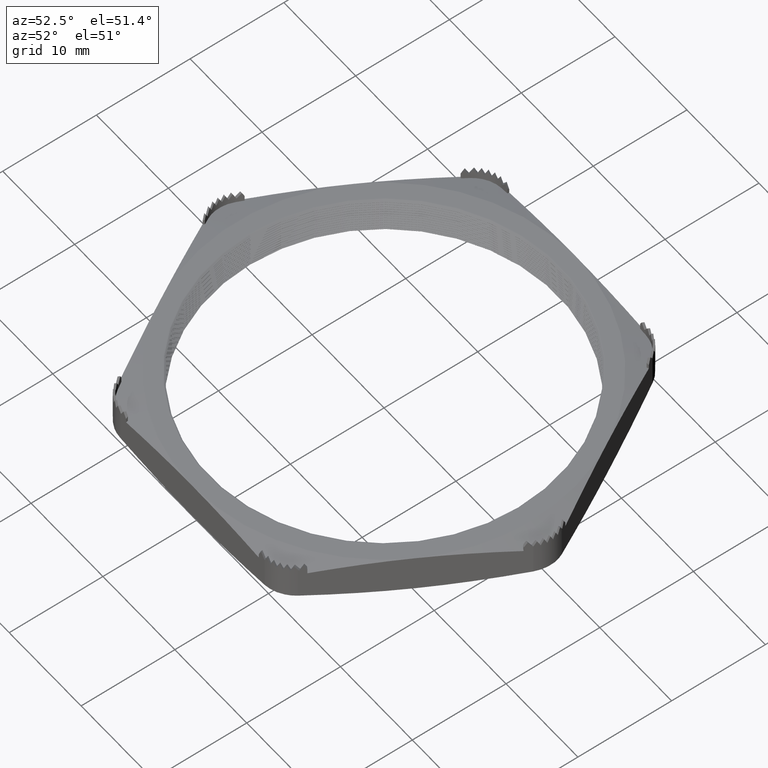
[diagram: clean part render]
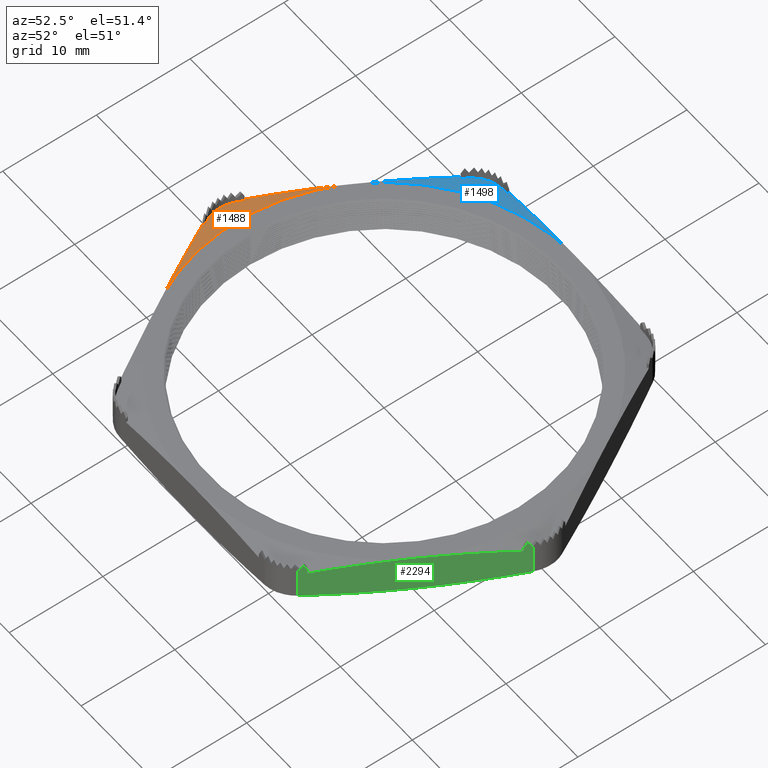
[diagram: same view with three faces highlighted in distinct colors, each labeled with its STEP entity id]
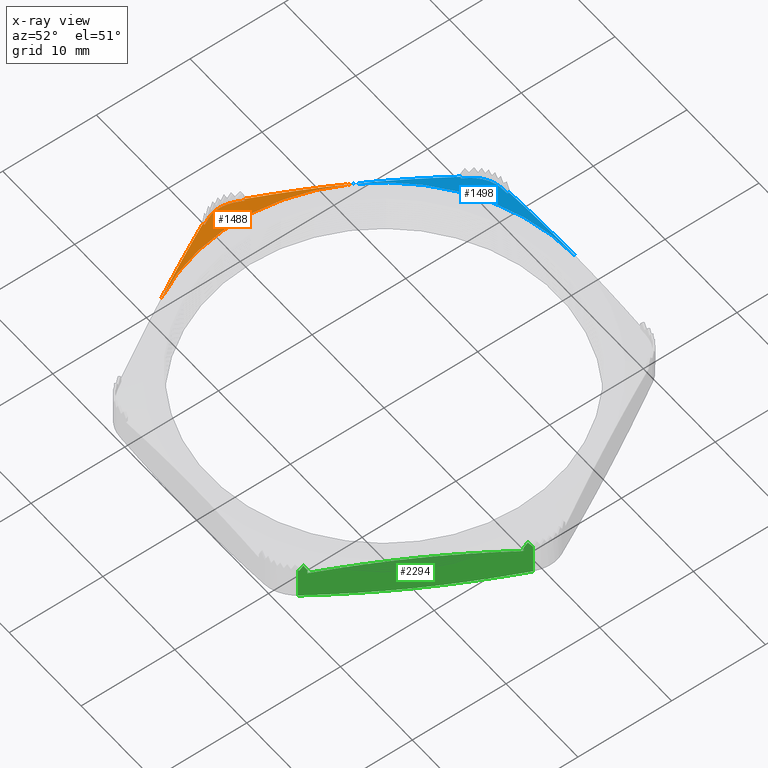
[diagram: x-ray of the same camera — body ghosted, the three highlighted faces saturated]
A machine part, auxiliary view with three faces highlighted in distinct colors.
The next image is the same camera in x-ray (body ghosted, the three faces saturated) — at least one of them is partly hidden behind the body in this view.
Their STEP definitions:

[orange] entity #1488 — the highlighted conical surface has half-angle 75 deg.
#1134 = EDGE_CURVE ( 'NONE', #2249, #2315, #4203, .T. ) ;
#1408 = ORIENTED_EDGE ( 'NONE', *, *, #1409, .T. ) ;
#1409 = EDGE_CURVE ( 'NONE', #2119, #1410, #4600, .T. ) ;
#1410 = VERTEX_POINT ( 'NONE', #4599 ) ;
#1411 = ORIENTED_EDGE ( 'NONE', *, *, #1412, .T. ) ;
#1412 = EDGE_CURVE ( 'NONE', #1410, #1413, #4647, .T. ) ;
#1413 = VERTEX_POINT ( 'NONE', #4646 ) ;
#1414 = ORIENTED_EDGE ( 'NONE', *, *, #1415, .T. ) ;
#1415 = EDGE_CURVE ( 'NONE', #1413, #1416, #4641, .T. ) ;
#1416 = VERTEX_POINT ( 'NONE', #4640 ) ;
#1417 = ORIENTED_EDGE ( 'NONE', *, *, #1418, .T. ) ;
#1418 = EDGE_CURVE ( 'NONE', #1416, #1419, #4626, .T. ) ;
#1419 = VERTEX_POINT ( 'NONE', #4625 ) ;
#1474 = ORIENTED_EDGE ( 'NONE', *, *, #1475, .T. ) ;
#1475 = EDGE_CURVE ( 'NONE', #1419, #2239, #4731, .T. ) ;
#1476 = ORIENTED_EDGE ( 'NONE', *, *, #2251, .T. ) ;
#1477 = ORIENTED_EDGE ( 'NONE', *, *, #1134, .T. ) ;
#1478 = ORIENTED_EDGE ( 'NONE', *, *, #2314, .T. ) ;
#1488 = ADVANCED_FACE ( 'NONE', ( #4765 ), #4762, .T. ) ;
#1489 = EDGE_LOOP ( 'NONE', ( #1408, #1411, #1414, #1417, #1474, #1476, #1477, #1478 ) ) ;
#2119 = VERTEX_POINT ( 'NONE', #6063 ) ;
#2239 = VERTEX_POINT ( 'NONE', #6312 ) ;
#2249 = VERTEX_POINT ( 'NONE', #6359 ) ;
#2251 = EDGE_CURVE ( 'NONE', #2239, #2249, #6352, .T. ) ;
#2314 = EDGE_CURVE ( 'NONE', #2315, #2119, #6463, .T. ) ;
#2315 = VERTEX_POINT ( 'NONE', #6462 ) ;
#4199 = DIRECTION ( 'NONE',  ( -1.000000000000000000, 0.0000000000000000000, 0.0000000000000000000 ) ) ;
#4200 = DIRECTION ( 'NONE',  ( 0.0000000000000000000, 0.0000000000000000000, -1.000000000000000000 ) ) ;
#4201 = CARTESIAN_POINT ( 'NONE',  ( 0.0000000000000000000, 0.0000000000000000000, 0.1600000000000000000 ) ) ;
#4202 = AXIS2_PLACEMENT_3D ( 'NONE', #4201, #4200, #4199 ) ;
#4203 = CIRCLE ( 'NONE', #4202, 0.8050000000000001600 ) ;
#4595 = CARTESIAN_POINT ( 'NONE',  ( -0.8719647140136449500, 0.08371281292109948600, 0.1409825971328895500 ) ) ;
#4596 = CARTESIAN_POINT ( 'NONE',  ( -0.8742742261706597500, 0.08504621038664948700, 0.1403324536377875700 ) ) ;
#4597 = CARTESIAN_POINT ( 'NONE',  ( -0.8765836264093800300, 0.08637954323614123500, 0.1396817798333260500 ) ) ;
#4598 = CARTESIAN_POINT ( 'NONE',  ( -0.8788929172439213800, 0.08771281292109976700, 0.1390305889569836700 ) ) ;
#4599 = CARTESIAN_POINT ( 'NONE',  ( -0.8719647140136449500, 0.08371281292109948600, 0.1409825971328895500 ) ) ;
#4600 = B_SPLINE_CURVE_WITH_KNOTS ( 'NONE', 3,
 ( #4598, #4597, #4596, #4595 ),
 .UNSPECIFIED., .F., .F.,
 ( 4, 4 ),
 ( 2.377267603356265900E-007, 0.0002093991866935288900 ),
 .UNSPECIFIED. ) ;
#4621 = CARTESIAN_POINT ( 'NONE',  ( -0.8719647140136445000, -0.08371281292110301100, 0.1409825971328895200 ) ) ;
#4622 = CARTESIAN_POINT ( 'NONE',  ( -0.8773004258428439600, -0.07447108893838357000, 0.1397960908119262300 ) ) ;
#4623 = CARTESIAN_POINT ( 'NONE',  ( -0.8826338010509426900, -0.06523341210212850500, 0.1385668485416790300 ) ) ;
#4624 = CARTESIAN_POINT ( 'NONE',  ( -0.8879647140136445200, -0.05600000000000180500, 0.1372969870991923300 ) ) ;
#4625 = CARTESIAN_POINT ( 'NONE',  ( -0.8719647140136445000, -0.08371281292110301100, 0.1409825971328895200 ) ) ;
#4626 = B_SPLINE_CURVE_WITH_KNOTS ( 'NONE', 3,
 ( #4624, #4623, #4622, #4621 ),
 .UNSPECIFIED., .F., .F.,
 ( 4, 4 ),
 ( 2.325706409840344000E-007, 0.0008184058491383300900 ),
 .UNSPECIFIED. ) ;
#4627 = CARTESIAN_POINT ( 'NONE',  ( -0.8879647140136445200, -0.05600000000000180500, 0.1372969870991923300 ) ) ;
#4628 = CARTESIAN_POINT ( 'NONE',  ( -0.8928726924769564400, -0.04749913193909154800, 0.1361278716672497100 ) ) ;
#4629 = CARTESIAN_POINT ( 'NONE',  ( -0.8966252038629916000, -0.03841558526766257500, 0.1352421121237987500 ) ) ;
#4630 = CARTESIAN_POINT ( 'NONE',  ( -0.9016694368837348000, -0.01960644395859573500, 0.1340537446975566500 ) ) ;
#4631 = CARTESIAN_POINT ( 'NONE',  ( -0.9029739887445900100, -0.009701254162843940900, 0.1337480857638034300 ) ) ;
#4632 = CARTESIAN_POINT ( 'NONE',  ( -0.9029677937363614900, 0.004921799717285105600, 0.1337495398194442400 ) ) ;
#4633 = CARTESIAN_POINT ( 'NONE',  ( -0.9026488927524557400, 0.009786468010697747800, 0.1338243553465434400 ) ) ;
#4634 = CARTESIAN_POINT ( 'NONE',  ( -0.9013685954937965500, 0.01949616607213217100, 0.1341251397097538200 ) ) ;
#4635 = CARTESIAN_POINT ( 'NONE',  ( -0.9003965472930397500, 0.02436580177563657200, 0.1343536180613300000 ) ) ;
#4636 = CARTESIAN_POINT ( 'NONE',  ( -0.8965885572564572500, 0.03852601334521235000, 0.1352507574706307300 ) ) ;
#4637 = CARTESIAN_POINT ( 'NONE',  ( -0.8928724545599157100, 0.04749954402349054700, 0.1361279283407836600 ) ) ;
#4638 = CARTESIAN_POINT ( 'NONE',  ( -0.8879647140136449600, 0.05599999999999736400, 0.1372969870991998000 ) ) ;
#4640 = CARTESIAN_POINT ( 'NONE',  ( -0.8879647140136445200, -0.05600000000000180500, 0.1372969870991923300 ) ) ;
#4641 = B_SPLINE_CURVE_WITH_KNOTS ( 'NONE', 3,
 ( #4638, #4637, #4636, #4635, #4634, #4633, #4632, #4631, #4630, #4629, #4628, #4627 ),
 .UNSPECIFIED., .F., .F.,
 ( 4, 2, 2, 2, 2, 4 ),
 ( 2.293178405449873700E-007, 0.0007429020004505192200, 0.001114238341755505900, 0.001485574683060492900, 0.002228247365670467000, 0.002970920048280441000 ),
 .UNSPECIFIED. ) ;
#4642 = CARTESIAN_POINT ( 'NONE',  ( -0.8879647140136449600, 0.05599999999999736400, 0.1372969870991998000 ) ) ;
#4643 = CARTESIAN_POINT ( 'NONE',  ( -0.8826338010509428000, 0.06523341210212481300, 0.1385668485416790800 ) ) ;
#4644 = CARTESIAN_POINT ( 'NONE',  ( -0.8773004258428442900, 0.07447108893837996200, 0.1397960908119262900 ) ) ;
#4645 = CARTESIAN_POINT ( 'NONE',  ( -0.8719647140136449500, 0.08371281292109948600, 0.1409825971328895500 ) ) ;
#4646 = CARTESIAN_POINT ( 'NONE',  ( -0.8879647140136449600, 0.05599999999999736400, 0.1372969870991998000 ) ) ;
#4647 = B_SPLINE_CURVE_WITH_KNOTS ( 'NONE', 3,
 ( #4645, #4644, #4643, #4642 ),
 .UNSPECIFIED., .F., .F.,
 ( 4, 4 ),
 ( 2.323613523121268800E-007, 0.0008184056398496577600 ),
 .UNSPECIFIED. ) ;
#4729 = CARTESIAN_POINT ( 'NONE',  ( -0.8719647140136445000, -0.08371281292110301100, 0.1409825971328895200 ) ) ;
#4731 = B_SPLINE_CURVE_WITH_KNOTS ( 'NONE', 3,
 ( #4729, #4779, #4778, #4777 ),
 .UNSPECIFIED., .F., .F.,
 ( 4, 4 ),
 ( 2.377039528376292500E-007, 0.0002093991638859902100 ),
 .UNSPECIFIED. ) ;
#4754 = DIRECTION ( 'NONE',  ( 1.000000000000000000, 0.0000000000000000000, 0.0000000000000000000 ) ) ;
#4755 = DIRECTION ( 'NONE',  ( 0.0000000000000000000, 0.0000000000000000000, -1.000000000000000000 ) ) ;
#4756 = CARTESIAN_POINT ( 'NONE',  ( 0.0000000000000000000, 0.0000000000000000000, 0.1600000000000000000 ) ) ;
#4757 = AXIS2_PLACEMENT_3D ( 'NONE', #4756, #4755, #4754 ) ;
#4762 = CONICAL_SURFACE ( 'NONE', #4757, 0.8050000000000001600, 1.308996938995750100 ) ;
#4765 = FACE_OUTER_BOUND ( 'NONE', #1489, .T. ) ;
#4777 = CARTESIAN_POINT ( 'NONE',  ( -0.8788929172439191600, -0.08771281292110333400, 0.1390305889569842000 ) ) ;
#4778 = CARTESIAN_POINT ( 'NONE',  ( -0.8765836264093787000, -0.08637954323614427400, 0.1396817798333262800 ) ) ;
#4779 = CARTESIAN_POINT ( 'NONE',  ( -0.8742742261706588600, -0.08504621038665279000, 0.1403324536377877100 ) ) ;
#6063 = CARTESIAN_POINT ( 'NONE',  ( -0.8788929172439213800, 0.08771281292109976700, 0.1390305889569836700 ) ) ;
#6312 = CARTESIAN_POINT ( 'NONE',  ( -0.8788929172439191600, -0.08771281292110333400, 0.1390305889569842000 ) ) ;
#6344 = CARTESIAN_POINT ( 'NONE',  ( -0.6971504500464734700, -0.4024999999999999100, 0.1600000000000000000 ) ) ;
#6345 = CARTESIAN_POINT ( 'NONE',  ( -0.7274408612460476800, -0.3500354688201838800, 0.1600000000000000300 ) ) ;
#6346 = CARTESIAN_POINT ( 'NONE',  ( -0.7577312724456217700, -0.2975709376403677400, 0.1581459543130509500 ) ) ;
#6347 = CARTESIAN_POINT ( 'NONE',  ( -0.8183120948447705200, -0.1926418752807356200, 0.1509963363517693200 ) ) ;
#6348 = CARTESIAN_POINT ( 'NONE',  ( -0.8486025060443448400, -0.1401773441009193900, 0.1457107357556509400 ) ) ;
#6349 = CARTESIAN_POINT ( 'NONE',  ( -0.8788929172439191600, -0.08771281292110333400, 0.1390305889569842000 ) ) ;
#6352 = B_SPLINE_CURVE_WITH_KNOTS ( 'NONE', 3,
 ( #6349, #6348, #6347, #6346, #6345, #6344 ),
 .UNSPECIFIED., .F., .F.,
 ( 4, 2, 4 ),
 ( 0.0008130309401077197100, 0.005429289606922847400, 0.01004554827373797500 ),
 .UNSPECIFIED. ) ;
#6359 = CARTESIAN_POINT ( 'NONE',  ( -0.6971504500464734700, -0.4024999999999999100, 0.1600000000000000000 ) ) ;
#6456 = CARTESIAN_POINT ( 'NONE',  ( -0.8788929172439213800, 0.08771281292109976700, 0.1390305889569836700 ) ) ;
#6457 = CARTESIAN_POINT ( 'NONE',  ( -0.8486025060443466200, 0.1401773441009164200, 0.1457107357556506100 ) ) ;
#6458 = CARTESIAN_POINT ( 'NONE',  ( -0.8183120948447717400, 0.1926418752807331800, 0.1509963363517690700 ) ) ;
#6459 = CARTESIAN_POINT ( 'NONE',  ( -0.7577312724456227700, 0.2975709376403666800, 0.1581459543130508700 ) ) ;
#6460 = CARTESIAN_POINT ( 'NONE',  ( -0.7274408612460479000, 0.3500354688201832700, 0.1600000000000000300 ) ) ;
#6461 = CARTESIAN_POINT ( 'NONE',  ( -0.6971504500464731400, 0.4025000000000001900, 0.1600000000000000000 ) ) ;
#6462 = CARTESIAN_POINT ( 'NONE',  ( -0.6971504500464731400, 0.4025000000000001900, 0.1600000000000000000 ) ) ;
#6463 = B_SPLINE_CURVE_WITH_KNOTS ( 'NONE', 3,
 ( #6461, #6460, #6459, #6458, #6457, #6456 ),
 .UNSPECIFIED., .F., .F.,
 ( 4, 2, 4 ),
 ( 0.01004554827373797600, 0.01466180694055316300, 0.01927806560736834700 ),
 .UNSPECIFIED. ) ;

[blue] entity #1498 — the highlighted conical surface has half-angle 75 deg.
#835 = VERTEX_POINT ( 'NONE', #3558 ) ;
#837 = EDGE_CURVE ( 'NONE', #838, #835, #3557, .T. ) ;
#838 = VERTEX_POINT ( 'NONE', #3556 ) ;
#1074 = EDGE_CURVE ( 'NONE', #2315, #838, #4073, .T. ) ;
#1490 = ORIENTED_EDGE ( 'NONE', *, *, #837, .T. ) ;
#1498 = ADVANCED_FACE ( 'NONE', ( #4794 ), #4796, .T. ) ;
#1499 = EDGE_LOOP ( 'NONE', ( #1500, #1503, #1565, #1568, #1571, #1573, #1574, #1490 ) ) ;
#1500 = ORIENTED_EDGE ( 'NONE', *, *, #1501, .T. ) ;
#1501 = EDGE_CURVE ( 'NONE', #835, #1502, #4782, .T. ) ;
#1502 = VERTEX_POINT ( 'NONE', #4781 ) ;
#1503 = ORIENTED_EDGE ( 'NONE', *, *, #1563, .T. ) ;
#1563 = EDGE_CURVE ( 'NONE', #1502, #1564, #4924, .T. ) ;
#1564 = VERTEX_POINT ( 'NONE', #4923 ) ;
#1565 = ORIENTED_EDGE ( 'NONE', *, *, #1566, .T. ) ;
#1566 = EDGE_CURVE ( 'NONE', #1564, #1567, #4918, .T. ) ;
#1567 = VERTEX_POINT ( 'NONE', #4917 ) ;
#1568 = ORIENTED_EDGE ( 'NONE', *, *, #1569, .T. ) ;
#1569 = EDGE_CURVE ( 'NONE', #1567, #1570, #4916, .T. ) ;
#1570 = VERTEX_POINT ( 'NONE', #4951 ) ;
#1571 = ORIENTED_EDGE ( 'NONE', *, *, #1572, .T. ) ;
#1572 = EDGE_CURVE ( 'NONE', #1570, #2278, #4946, .T. ) ;
#1573 = ORIENTED_EDGE ( 'NONE', *, *, #2265, .T. ) ;
#1574 = ORIENTED_EDGE ( 'NONE', *, *, #1074, .T. ) ;
#2265 = EDGE_CURVE ( 'NONE', #2278, #2315, #6378, .T. ) ;
#2278 = VERTEX_POINT ( 'NONE', #6412 ) ;
#2315 = VERTEX_POINT ( 'NONE', #6462 ) ;
#3548 = CARTESIAN_POINT ( 'NONE',  ( -0.3634849343948943800, 0.8050000000000001600, 0.1390305889569839200 ) ) ;
#3549 = CARTESIAN_POINT ( 'NONE',  ( -0.3029621484441051300, 0.8050000000000001600, 0.1457043361727570200 ) ) ;
#3550 = CARTESIAN_POINT ( 'NONE',  ( -0.2421923260608029000, 0.8050000000000002700, 0.1510068934148640900 ) ) ;
#3551 = CARTESIAN_POINT ( 'NONE',  ( -0.1209900321876240900, 0.8050000000000002700, 0.1581532448706951500 ) ) ;
#3552 = CARTESIAN_POINT ( 'NONE',  ( -0.06045803258295566500, 0.8050000000000001600, 0.1599999999999999200 ) ) ;
#3553 = CARTESIAN_POINT ( 'NONE',  ( 0.0000000000000000000, 0.8050000000000001600, 0.1600000000000000000 ) ) ;
#3556 = CARTESIAN_POINT ( 'NONE',  ( 0.0000000000000000000, 0.8050000000000001600, 0.1600000000000000000 ) ) ;
#3557 = B_SPLINE_CURVE_WITH_KNOTS ( 'NONE', 3,
 ( #3553, #3552, #3551, #3550, #3549, #3548 ),
 .UNSPECIFIED., .F., .F.,
 ( 4, 2, 4 ),
 ( 0.05306405187796105200, 0.05768915721245433000, 0.06231426254694760700 ),
 .UNSPECIFIED. ) ;
#3558 = CARTESIAN_POINT ( 'NONE',  ( -0.3634849343948943800, 0.8050000000000001600, 0.1390305889569839200 ) ) ;
#4069 = DIRECTION ( 'NONE',  ( -1.000000000000000000, 0.0000000000000000000, 0.0000000000000000000 ) ) ;
#4070 = DIRECTION ( 'NONE',  ( 0.0000000000000000000, 0.0000000000000000000, -1.000000000000000000 ) ) ;
#4071 = CARTESIAN_POINT ( 'NONE',  ( 0.0000000000000000000, 0.0000000000000000000, 0.1600000000000000000 ) ) ;
#4072 = AXIS2_PLACEMENT_3D ( 'NONE', #4071, #4070, #4069 ) ;
#4073 = CIRCLE ( 'NONE', #4072, 0.8050000000000001600 ) ;
#4780 = CARTESIAN_POINT ( 'NONE',  ( -0.3634849343948943800, 0.8050000000000001600, 0.1390305889569839200 ) ) ;
#4781 = CARTESIAN_POINT ( 'NONE',  ( -0.3634849343948941500, 0.7970000000000000400, 0.1409825971328895200 ) ) ;
#4782 = B_SPLINE_CURVE_WITH_KNOTS ( 'NONE', 3,
 ( #4780, #4827, #4826, #4825, #4824, #4823, #4822 ),
 .UNSPECIFIED., .F., .F.,
 ( 4, 3, 4 ),
 ( 0.002219040344495822700, 0.002332800426249965800, 0.002428201429202445300 ),
 .UNSPECIFIED. ) ;
#4783 = DIRECTION ( 'NONE',  ( 1.000000000000000000, 0.0000000000000000000, 0.0000000000000000000 ) ) ;
#4784 = DIRECTION ( 'NONE',  ( 0.0000000000000000000, 0.0000000000000000000, -1.000000000000000000 ) ) ;
#4785 = CARTESIAN_POINT ( 'NONE',  ( 0.0000000000000000000, 0.0000000000000000000, 0.1600000000000000000 ) ) ;
#4786 = AXIS2_PLACEMENT_3D ( 'NONE', #4785, #4784, #4783 ) ;
#4794 = FACE_OUTER_BOUND ( 'NONE', #1499, .T. ) ;
#4796 = CONICAL_SURFACE ( 'NONE', #4786, 0.8050000000000001600, 1.308996938995750100 ) ;
#4822 = CARTESIAN_POINT ( 'NONE',  ( -0.3634849343948941500, 0.7970000000000000400, 0.1409825971328895200 ) ) ;
#4823 = CARTESIAN_POINT ( 'NONE',  ( -0.3634849343948934900, 0.7982163587306845300, 0.1406860585024747900 ) ) ;
#4824 = CARTESIAN_POINT ( 'NONE',  ( -0.3634849343948934900, 0.7994326905691387900, 0.1403894095427568300 ) ) ;
#4825 = CARTESIAN_POINT ( 'NONE',  ( -0.3634849343948934900, 0.8006489957929516800, 0.1400926515208490700 ) ) ;
#4826 = CARTESIAN_POINT ( 'NONE',  ( -0.3634849343948934900, 0.8020993682023355200, 0.1397387850416037800 ) ) ;
#4827 = CARTESIAN_POINT ( 'NONE',  ( -0.3634849343948934900, 0.8035497027833309300, 0.1393847634822633100 ) ) ;
#4911 = CARTESIAN_POINT ( 'NONE',  ( -0.4338001270076254900, 0.7903561835845177600, 0.1341251394670321100 ) ) ;
#4912 = CARTESIAN_POINT ( 'NONE',  ( -0.4290968755473641400, 0.7919491824369593300, 0.1343536178318957300 ) ) ;
#4913 = CARTESIAN_POINT ( 'NONE',  ( -0.4149297935073169000, 0.7957314693390370500, 0.1352507559292461200 ) ) ;
#4914 = CARTESIAN_POINT ( 'NONE',  ( -0.4053004337344769900, 0.7970000000000000400, 0.1361279261674960800 ) ) ;
#4915 = CARTESIAN_POINT ( 'NONE',  ( -0.3954849343948943500, 0.7970000000000001500, 0.1372969870991998000 ) ) ;
#4916 = B_SPLINE_CURVE_WITH_KNOTS ( 'NONE', 3,
 ( #4950, #4949, #4948, #4947 ),
 .UNSPECIFIED., .F., .F.,
 ( 4, 4 ),
 ( 2.325706409842209900E-007, 0.0008184058491383302000 ),
 .UNSPECIFIED. ) ;
#4917 = CARTESIAN_POINT ( 'NONE',  ( -0.4924797796187506100, 0.7410000000000002100, 0.1372969870991923300 ) ) ;
#4918 = B_SPLINE_CURVE_WITH_KNOTS ( 'NONE', 3,
 ( #4915, #4914, #4913, #4912, #4911, #4958, #4957, #4956, #4955, #4954, #4953, #4952 ),
 .UNSPECIFIED., .F., .F.,
 ( 4, 2, 2, 2, 2, 4 ),
 ( 1.985902076092223800E-007, 0.0007428712618214092600, 0.001114207597628310400, 0.001485543933435211700, 0.002228216605049019400, 0.002970889276662826800 ),
 .UNSPECIFIED. ) ;
#4919 = CARTESIAN_POINT ( 'NONE',  ( -0.3954849343948943500, 0.7970000000000001500, 0.1372969870991998000 ) ) ;
#4920 = CARTESIAN_POINT ( 'NONE',  ( -0.3848230167087705000, 0.7970000000000000400, 0.1385668594707076300 ) ) ;
#4921 = CARTESIAN_POINT ( 'NONE',  ( -0.3741559887852666200, 0.7970000000000000400, 0.1397961318691330100 ) ) ;
#4922 = CARTESIAN_POINT ( 'NONE',  ( -0.3634849343948941500, 0.7970000000000000400, 0.1409825971328895200 ) ) ;
#4923 = CARTESIAN_POINT ( 'NONE',  ( -0.3954849343948943500, 0.7970000000000001500, 0.1372969870991998000 ) ) ;
#4924 = B_SPLINE_CURVE_WITH_KNOTS ( 'NONE', 3,
 ( #4922, #4921, #4920, #4919 ),
 .UNSPECIFIED., .F., .F.,
 ( 4, 4 ),
 ( 0.002287766247632967600, 0.003105880664764662700 ),
 .UNSPECIFIED. ) ;
#4941 = CARTESIAN_POINT ( 'NONE',  ( -0.5154079828490261100, 0.7172871870788981600, 0.1390305889569839700 ) ) ;
#4942 = CARTESIAN_POINT ( 'NONE',  ( -0.5130986920144854400, 0.7159539173939389900, 0.1396817798333261600 ) ) ;
#4943 = CARTESIAN_POINT ( 'NONE',  ( -0.5107892917757652600, 0.7146205845444473200, 0.1403324536377876500 ) ) ;
#4944 = CARTESIAN_POINT ( 'NONE',  ( -0.5084797796187500200, 0.7132871870788987100, 0.1409825971328895500 ) ) ;
#4946 = B_SPLINE_CURVE_WITH_KNOTS ( 'NONE', 3,
 ( #4944, #4943, #4942, #4941 ),
 .UNSPECIFIED., .F., .F.,
 ( 4, 4 ),
 ( 2.377039528414936800E-007, 0.0002093991638860157700 ),
 .UNSPECIFIED. ) ;
#4947 = CARTESIAN_POINT ( 'NONE',  ( -0.5084797796187500200, 0.7132871870788987100, 0.1409825971328895500 ) ) ;
#4948 = CARTESIAN_POINT ( 'NONE',  ( -0.5031440677895507900, 0.7225289110616182100, 0.1397960908119262900 ) ) ;
#4949 = CARTESIAN_POINT ( 'NONE',  ( -0.4978106925814522200, 0.7317665878978733000, 0.1385668485416790800 ) ) ;
#4950 = CARTESIAN_POINT ( 'NONE',  ( -0.4924797796187506100, 0.7410000000000002100, 0.1372969870991923300 ) ) ;
#4951 = CARTESIAN_POINT ( 'NONE',  ( -0.5084797796187500200, 0.7132871870788987100, 0.1409825971328895500 ) ) ;
#4952 = CARTESIAN_POINT ( 'NONE',  ( -0.4924797796187506100, 0.7410000000000002100, 0.1372969870991923300 ) ) ;
#4953 = CARTESIAN_POINT ( 'NONE',  ( -0.4875718012582030400, 0.7495008678829173700, 0.1361278716917289400 ) ) ;
#4954 = CARTESIAN_POINT ( 'NONE',  ( -0.4815814872106600800, 0.7572923971976482900, 0.1352421135847508600 ) ) ;
#4955 = CARTESIAN_POINT ( 'NONE',  ( -0.4678144056736476800, 0.7710654093342763600, 0.1340537450684679800 ) ) ;
#4956 = CARTESIAN_POINT ( 'NONE',  ( -0.4598885374722731000, 0.7771477784228579800, 0.1337480860923135900 ) ) ;
#4957 = CARTESIAN_POINT ( 'NONE',  ( -0.4472215089829780200, 0.7844539397877018400, 0.1337495396527817500 ) ) ;
#4958 = CARTESIAN_POINT ( 'NONE',  ( -0.4428491308717851200, 0.7866100993826097300, 0.1338243549656338300 ) ) ;
#6370 = CARTESIAN_POINT ( 'NONE',  ( -0.6971504500464731400, 0.4025000000000001900, 0.1600000000000000000 ) ) ;
#6371 = CARTESIAN_POINT ( 'NONE',  ( -0.6668600388468986000, 0.4549645311798165000, 0.1600000000000000600 ) ) ;
#6372 = CARTESIAN_POINT ( 'NONE',  ( -0.6365696276473239400, 0.5074290623596328100, 0.1581459543130509200 ) ) ;
#6373 = CARTESIAN_POINT ( 'NONE',  ( -0.5759888052481753100, 0.6123581247192655400, 0.1509963363517692300 ) ) ;
#6374 = CARTESIAN_POINT ( 'NONE',  ( -0.5456983940486004300, 0.6648226558990816300, 0.1457107357556508300 ) ) ;
#6375 = CARTESIAN_POINT ( 'NONE',  ( -0.5154079828490261100, 0.7172871870788981600, 0.1390305889569839700 ) ) ;
#6378 = B_SPLINE_CURVE_WITH_KNOTS ( 'NONE', 3,
 ( #6375, #6374, #6373, #6372, #6371, #6370 ),
 .UNSPECIFIED., .F., .F.,
 ( 4, 2, 4 ),
 ( 0.0008130309401076748300, 0.005429289606922825700, 0.01004554827373797600 ),
 .UNSPECIFIED. ) ;
#6412 = CARTESIAN_POINT ( 'NONE',  ( -0.5154079828490261100, 0.7172871870788981600, 0.1390305889569839700 ) ) ;
#6462 = CARTESIAN_POINT ( 'NONE',  ( -0.6971504500464731400, 0.4025000000000001900, 0.1600000000000000000 ) ) ;

[green] entity #2294 — the highlighted planar face has unit normal (-0.866, 0.5, 0).
#753 = VERTEX_POINT ( 'NONE', #3402 ) ;
#792 = ORIENTED_EDGE ( 'NONE', *, *, #793, .T. ) ;
#793 = EDGE_CURVE ( 'NONE', #753, #2303, #3482, .T. ) ;
#807 = EDGE_CURVE ( 'NONE', #820, #1619, #3514, .T. ) ;
#808 = ORIENTED_EDGE ( 'NONE', *, *, #807, .F. ) ;
#809 = EDGE_CURVE ( 'NONE', #819, #820, #3507, .T. ) ;
#810 = ORIENTED_EDGE ( 'NONE', *, *, #811, .T. ) ;
#811 = EDGE_CURVE ( 'NONE', #819, #812, #3506, .T. ) ;
#812 = VERTEX_POINT ( 'NONE', #3496 ) ;
#813 = ORIENTED_EDGE ( 'NONE', *, *, #814, .T. ) ;
#814 = EDGE_CURVE ( 'NONE', #812, #815, #3495, .T. ) ;
#815 = VERTEX_POINT ( 'NONE', #3491 ) ;
#816 = ORIENTED_EDGE ( 'NONE', *, *, #817, .T. ) ;
#817 = EDGE_CURVE ( 'NONE', #815, #818, #3490, .T. ) ;
#818 = VERTEX_POINT ( 'NONE', #3486 ) ;
#819 = VERTEX_POINT ( 'NONE', #3538 ) ;
#820 = VERTEX_POINT ( 'NONE', #3537 ) ;
#821 = ORIENTED_EDGE ( 'NONE', *, *, #809, .F. ) ;
#822 = VERTEX_POINT ( 'NONE', #3536 ) ;
#823 = ORIENTED_EDGE ( 'NONE', *, *, #824, .T. ) ;
#824 = EDGE_CURVE ( 'NONE', #822, #831, #3535, .T. ) ;
#825 = ORIENTED_EDGE ( 'NONE', *, *, #826, .F. ) ;
#826 = EDGE_CURVE ( 'NONE', #827, #831, #3531, .T. ) ;
#827 = VERTEX_POINT ( 'NONE', #3530 ) ;
#828 = ORIENTED_EDGE ( 'NONE', *, *, #829, .F. ) ;
#829 = EDGE_CURVE ( 'NONE', #753, #827, #3523, .T. ) ;
#830 = EDGE_CURVE ( 'NONE', #818, #822, #3567, .T. ) ;
#831 = VERTEX_POINT ( 'NONE', #3563 ) ;
#832 = ORIENTED_EDGE ( 'NONE', *, *, #830, .T. ) ;
#1619 = VERTEX_POINT ( 'NONE', #5095 ) ;
#2292 = EDGE_CURVE ( 'NONE', #1619, #2311, #6400, .T. ) ;
#2294 = ADVANCED_FACE ( 'NONE', ( #6396 ), #6162, .F. ) ;
#2295 = ORIENTED_EDGE ( 'NONE', *, *, #2296, .T. ) ;
#2296 = EDGE_CURVE ( 'NONE', #2310, #2311, #6448, .T. ) ;
#2297 = ORIENTED_EDGE ( 'NONE', *, *, #2292, .F. ) ;
#2300 = EDGE_LOOP ( 'NONE', ( #2301, #2295, #2297, #808, #821, #810, #813, #816, #832, #823, #825, #828, #792 ) ) ;
#2301 = ORIENTED_EDGE ( 'NONE', *, *, #2302, .T. ) ;
#2302 = EDGE_CURVE ( 'NONE', #2303, #2310, #6436, .T. ) ;
#2303 = VERTEX_POINT ( 'NONE', #6432 ) ;
#2310 = VERTEX_POINT ( 'NONE', #6470 ) ;
#2311 = VERTEX_POINT ( 'NONE', #6469 ) ;
#3402 = CARTESIAN_POINT ( 'NONE',  ( 0.8948929172439200600, -0.05999999999999949100, 0.02462508695735182400 ) ) ;
#3479 = DIRECTION ( 'NONE',  ( 0.0000000000000000000, 0.0000000000000000000, 1.000000000000000000 ) ) ;
#3480 = VECTOR ( 'NONE', #3479, 39.37007874015748100 ) ;
#3481 = CARTESIAN_POINT ( 'NONE',  ( 0.8948929172439200600, -0.05999999999999949800, 0.1600000000000000000 ) ) ;
#3482 = LINE ( 'NONE', #3481, #3480 ) ;
#3486 = CARTESIAN_POINT ( 'NONE',  ( 0.5015515763884785800, -0.7412871870788918500, 0.1570000000000000000 ) ) ;
#3487 = DIRECTION ( 'NONE',  ( -0.2409114054616035300, -0.4172707943823236200, -0.8762686682028859600 ) ) ;
#3488 = VECTOR ( 'NONE', #3487, 39.37007874015748900 ) ;
#3489 = CARTESIAN_POINT ( 'NONE',  ( 0.4936452201101481600, -0.7549813978557014000, 0.1282421573686997300 ) ) ;
#3490 = LINE ( 'NONE', #3489, #3488 ) ;
#3491 = CARTESIAN_POINT ( 'NONE',  ( 0.5084797796187541200, -0.7292871870788919500, 0.1822000000000000000 ) ) ;
#3492 = DIRECTION ( 'NONE',  ( -0.2409114054616036700, -0.4172707943823239000, 0.8762686682028857400 ) ) ;
#3493 = VECTOR ( 'NONE', #3492, 39.37007874015748900 ) ;
#3494 = CARTESIAN_POINT ( 'NONE',  ( 0.5030181984791396400, -0.7387469231023643400, 0.2020654456492920700 ) ) ;
#3495 = LINE ( 'NONE', #3494, #3493 ) ;
#3496 = CARTESIAN_POINT ( 'NONE',  ( 0.5154079828454379800, -0.7172871870752939300, 0.1570000000000871300 ) ) ;
#3497 = DIRECTION ( 'NONE',  ( 0.0000000000000000000, 0.0000000000000000000, 1.000000000000000000 ) ) ;
#3498 = VECTOR ( 'NONE', #3497, 39.37007874015748100 ) ;
#3499 = CARTESIAN_POINT ( 'NONE',  ( 0.5154079828490307800, -0.7172871870788944900, -19685.03937007874300 ) ) ;
#3500 = CARTESIAN_POINT ( 'NONE',  ( 0.6971504500464732500, -0.4025000000000000800, 0.1600000000000000000 ) ) ;
#3501 = CARTESIAN_POINT ( 'NONE',  ( 0.6668600388468989300, -0.4549645311798156100, 0.1600000000000000300 ) ) ;
#3502 = CARTESIAN_POINT ( 'NONE',  ( 0.6365696276473248300, -0.5074290623596310300, 0.1581459543130510600 ) ) ;
#3503 = CARTESIAN_POINT ( 'NONE',  ( 0.5759888052481768600, -0.6123581247192622100, 0.1509963363517695400 ) ) ;
#3504 = CARTESIAN_POINT ( 'NONE',  ( 0.5456983940486026500, -0.6648226558990774100, 0.1457107357556512700 ) ) ;
#3505 = CARTESIAN_POINT ( 'NONE',  ( 0.5154079828490287800, -0.7172871870788932700, 0.1390305889569846100 ) ) ;
#3506 = LINE ( 'NONE', #3499, #3498 ) ;
#3507 = B_SPLINE_CURVE_WITH_KNOTS ( 'NONE', 3,
 ( #3505, #3504, #3503, #3502, #3501, #3500 ),
 .UNSPECIFIED., .F., .F.,
 ( 4, 2, 4 ),
 ( 0.0008130309401078069900, 0.005429289606922887300, 0.01004554827373796800 ),
 .UNSPECIFIED. ) ;
#3508 = CARTESIAN_POINT ( 'NONE',  ( 0.8788929172439238200, -0.08771281292109492400, 0.1390305889569831700 ) ) ;
#3509 = CARTESIAN_POINT ( 'NONE',  ( 0.8486025060443487300, -0.1401773441009124300, 0.1457107357556503000 ) ) ;
#3510 = CARTESIAN_POINT ( 'NONE',  ( 0.8183120948447735200, -0.1926418752807298500, 0.1509963363517688700 ) ) ;
#3511 = CARTESIAN_POINT ( 'NONE',  ( 0.7577312724456233300, -0.2975709376403649100, 0.1581459543130509500 ) ) ;
#3512 = CARTESIAN_POINT ( 'NONE',  ( 0.7274408612460481200, -0.3500354688201823800, 0.1600000000000000000 ) ) ;
#3513 = CARTESIAN_POINT ( 'NONE',  ( 0.6971504500464732500, -0.4025000000000000800, 0.1600000000000000000 ) ) ;
#3514 = B_SPLINE_CURVE_WITH_KNOTS ( 'NONE', 3,
 ( #3513, #3512, #3511, #3510, #3509, #3508 ),
 .UNSPECIFIED., .F., .F.,
 ( 4, 2, 4 ),
 ( 0.01004554827373796800, 0.01466180694055322200, 0.01927806560736847500 ),
 .UNSPECIFIED. ) ;
#3515 = CARTESIAN_POINT ( 'NONE',  ( 0.6971504500464731400, -0.4025000000000000200, 0.0000000000000000000 ) ) ;
#3516 = CARTESIAN_POINT ( 'NONE',  ( 0.7301075279127141600, -0.3454166666666665400, -5.188910495778312700E-017 ) ) ;
#3517 = CARTESIAN_POINT ( 'NONE',  ( 0.7630646057789553000, -0.2883333333333330500, 0.002199165082848683500 ) ) ;
#3518 = CARTESIAN_POINT ( 'NONE',  ( 0.8289787615114377900, -0.1741666666666663600, 0.01062557450867277100 ) ) ;
#3519 = CARTESIAN_POINT ( 'NONE',  ( 0.8619358393776787000, -0.1170833333333329000, 0.01683726415721116500 ) ) ;
#3520 = CARTESIAN_POINT ( 'NONE',  ( 0.8948929172439200600, -0.05999999999999949100, 0.02462508695735182400 ) ) ;
#3523 = B_SPLINE_CURVE_WITH_KNOTS ( 'NONE', 3,
 ( #3520, #3519, #3518, #3517, #3516, #3515 ),
 .UNSPECIFIED., .F., .F.,
 ( 4, 2, 4 ),
 ( 2.309401076758238100E-007, 0.005022889606922830600, 0.01004554827373798500 ),
 .UNSPECIFIED. ) ;
#3524 = CARTESIAN_POINT ( 'NONE',  ( 0.4994079828490262700, -0.7449999999999998800, 0.02462508695735180300 ) ) ;
#3525 = CARTESIAN_POINT ( 'NONE',  ( 0.5323650607152674600, -0.6879166666666665100, 0.01683726415721112000 ) ) ;
#3526 = CARTESIAN_POINT ( 'NONE',  ( 0.5653221385815085900, -0.6308333333333331300, 0.01062557450867274500 ) ) ;
#3527 = CARTESIAN_POINT ( 'NONE',  ( 0.6312362943139907500, -0.5166666666666663900, 0.002199165082848678300 ) ) ;
#3528 = CARTESIAN_POINT ( 'NONE',  ( 0.6641933721802320000, -0.4595833333333330100, -5.792504840081572800E-017 ) ) ;
#3529 = CARTESIAN_POINT ( 'NONE',  ( 0.6971504500464731400, -0.4025000000000000200, 0.0000000000000000000 ) ) ;
#3530 = CARTESIAN_POINT ( 'NONE',  ( 0.6971504500464731400, -0.4025000000000000200, 0.0000000000000000000 ) ) ;
#3531 = B_SPLINE_CURVE_WITH_KNOTS ( 'NONE', 3,
 ( #3529, #3528, #3527, #3526, #3525, #3524 ),
 .UNSPECIFIED., .F., .F.,
 ( 4, 2, 4 ),
 ( 0.01004554827373798500, 0.01506820694055312900, 0.02009086560736828000 ),
 .UNSPECIFIED. ) ;
#3532 = DIRECTION ( 'NONE',  ( 0.0000000000000000000, 0.0000000000000000000, -1.000000000000000000 ) ) ;
#3533 = VECTOR ( 'NONE', #3532, 39.37007874015748100 ) ;
#3534 = CARTESIAN_POINT ( 'NONE',  ( 0.4994079828490262700, -0.7449999999999998800, 0.1600000000000000000 ) ) ;
#3535 = LINE ( 'NONE', #3534, #3533 ) ;
#3536 = CARTESIAN_POINT ( 'NONE',  ( 0.4994079828490262700, -0.7449999999999998800, 0.1629545598920909000 ) ) ;
#3537 = CARTESIAN_POINT ( 'NONE',  ( 0.6971504500464732500, -0.4025000000000000800, 0.1600000000000000000 ) ) ;
#3538 = CARTESIAN_POINT ( 'NONE',  ( 0.5154079828490287800, -0.7172871870788932700, 0.1390305889569846100 ) ) ;
#3563 = CARTESIAN_POINT ( 'NONE',  ( 0.4994079828490262700, -0.7449999999999998800, 0.02462508695735180300 ) ) ;
#3564 = DIRECTION ( 'NONE',  ( -0.2921480525624221000, -0.5060152703704179400, 0.8115405483005375700 ) ) ;
#3565 = VECTOR ( 'NONE', #3564, 39.37007874015748100 ) ;
#3566 = CARTESIAN_POINT ( 'NONE',  ( 0.4882819693621010500, -0.7642708206450509200, 0.1938608452716562600 ) ) ;
#3567 = LINE ( 'NONE', #3566, #3565 ) ;
#3947 = DIRECTION ( 'NONE',  ( -0.8660254037844387100, 0.4999999999999999400, 0.0000000000000000000 ) ) ;
#3949 = DIRECTION ( 'NONE',  ( -0.4999999999999998900, -0.8660254037844386000, 0.0000000000000000000 ) ) ;
#5095 = CARTESIAN_POINT ( 'NONE',  ( 0.8788929172439238200, -0.08771281292109492400, 0.1390305889569831700 ) ) ;
#6162 = PLANE ( 'NONE',  #6165 ) ;
#6164 = CARTESIAN_POINT ( 'NONE',  ( 0.4647669666976487800, -0.8049999999999997200, 0.1600000000000000000 ) ) ;
#6165 = AXIS2_PLACEMENT_3D ( 'NONE', #6164, #3947, #3949 ) ;
#6396 = FACE_OUTER_BOUND ( 'NONE', #2300, .T. ) ;
#6397 = DIRECTION ( 'NONE',  ( 0.0000000000000000000, 0.0000000000000000000, 1.000000000000000000 ) ) ;
#6398 = VECTOR ( 'NONE', #6397, 39.37007874015748100 ) ;
#6399 = CARTESIAN_POINT ( 'NONE',  ( 0.8788929172439207100, -0.08771281292109403500, -19685.03937007874300 ) ) ;
#6400 = LINE ( 'NONE', #6399, #6398 ) ;
#6432 = CARTESIAN_POINT ( 'NONE',  ( 0.8948929172439245000, -0.05999999999999162300, 0.1570000000000000000 ) ) ;
#6433 = DIRECTION ( 'NONE',  ( -0.2921480525624238200, -0.5060152703704210400, 0.8115405483005350100 ) ) ;
#6434 = VECTOR ( 'NONE', #6433, 39.37007874015748100 ) ;
#6435 = CARTESIAN_POINT ( 'NONE',  ( 0.7473358139714423300, -0.3155763998856188600, 0.5668900247497014000 ) ) ;
#6436 = LINE ( 'NONE', #6435, #6434 ) ;
#6445 = DIRECTION ( 'NONE',  ( -0.2409114054616054700, -0.4172707943823270600, -0.8762686682028837400 ) ) ;
#6446 = VECTOR ( 'NONE', #6445, 39.37007874015748100 ) ;
#6447 = CARTESIAN_POINT ( 'NONE',  ( 0.7833855532220194200, -0.2531364199040094800, -0.1903895746641220100 ) ) ;
#6448 = LINE ( 'NONE', #6447, #6446 ) ;
#6469 = CARTESIAN_POINT ( 'NONE',  ( 0.8788929172408037600, -0.08771281292022281600, 0.1570000000012060900 ) ) ;
#6470 = CARTESIAN_POINT ( 'NONE',  ( 0.8858211204742003600, -0.07571281292109333100, 0.1822000000000000300 ) ) ;